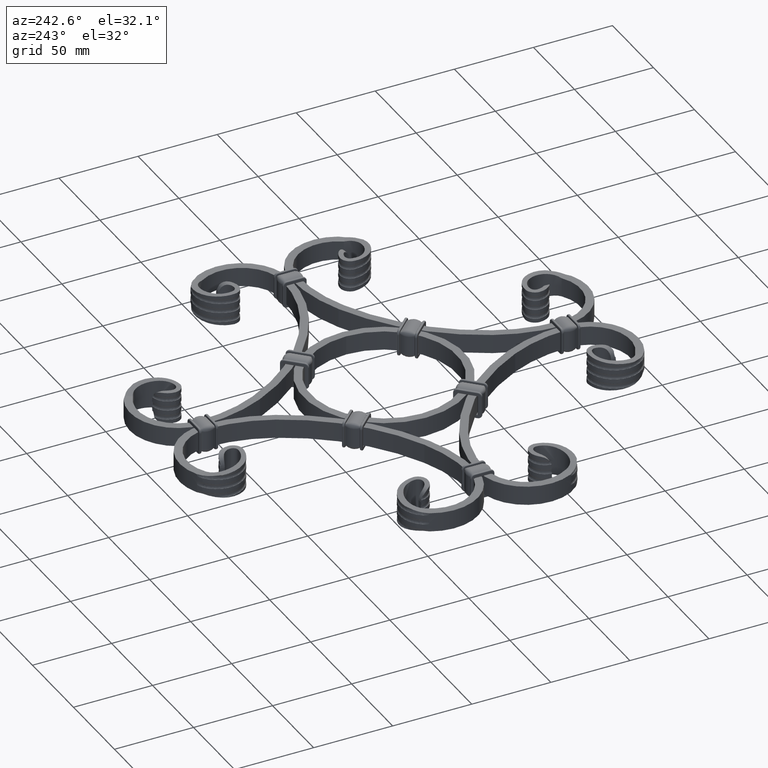
[diagram: clean part render]
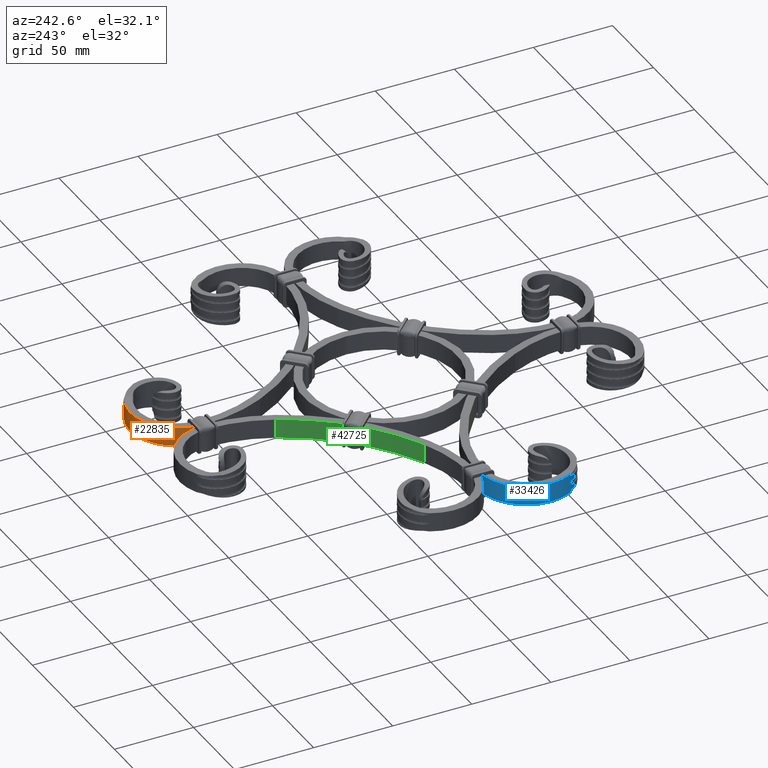
[diagram: same view with three faces highlighted in distinct colors, each labeled with its STEP entity id]
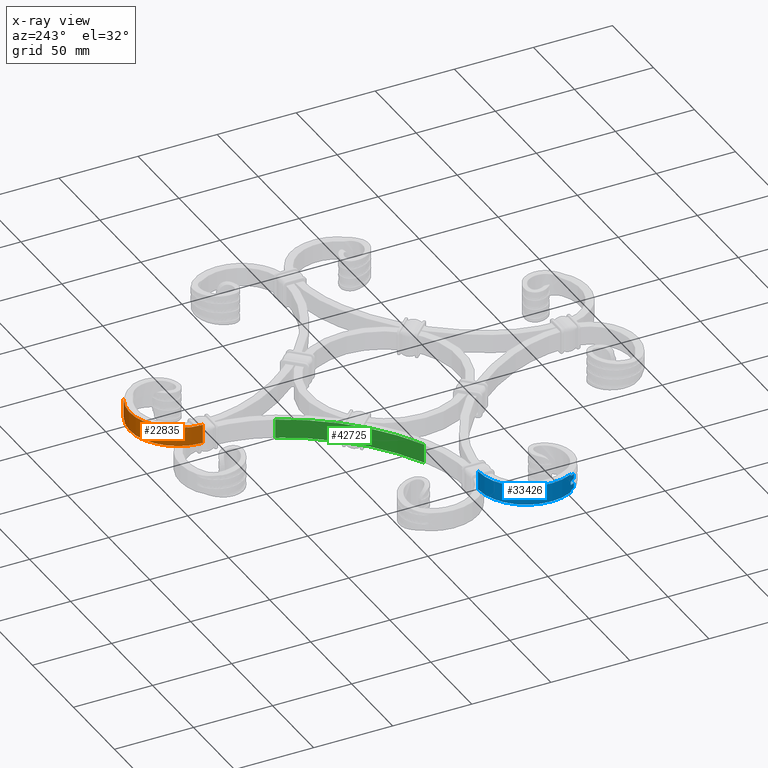
[diagram: x-ray of the same camera — body ghosted, the three highlighted faces saturated]
A machine part, auxiliary view with three faces highlighted in distinct colors.
The next image is the same camera in x-ray (body ghosted, the three faces saturated) — at least one of them is partly hidden behind the body in this view.
Their STEP definitions:

[orange] entity #22835 — the highlighted cylindrical surface (partial cylindrical patch) has radius 30.4695 mm, axis along (0, 0, 1).
#41 = VECTOR ( 'NONE', #47455, 1000.000000000000000 ) ;
#995 = VERTEX_POINT ( 'NONE', #35752 ) ;
#1142 = CARTESIAN_POINT ( 'NONE',  ( 47.08327223434769593, 140.0747903027560710, 4.497909027267798621 ) ) ;
#1564 = CARTESIAN_POINT ( 'NONE',  ( 46.46548124812328240, 140.4660913886092146, -4.514327846545052481 ) ) ;
#1619 = DIRECTION ( 'NONE',  ( 0.000000000000000000, -0.000000000000000000, 1.000000000000000000 ) ) ;
#1645 = CIRCLE ( 'NONE', #59008, 30.46951672795090715 ) ;
#1734 = CARTESIAN_POINT ( 'NONE',  ( 46.13954425604464404, 140.6642294062631606, 4.533243020575548954 ) ) ;
#1943 = VERTEX_POINT ( 'NONE', #41694 ) ;
#2212 = CARTESIAN_POINT ( 'NONE',  ( 45.20910745670473574, 141.1981766138224259, -1.176023217416813704 ) ) ;
#2465 = DIRECTION ( 'NONE',  ( 0.000000000000000000, -0.000000000000000000, 1.000000000000000000 ) ) ;
#2604 = CARTESIAN_POINT ( 'NONE',  ( 45.51109792649133823, 141.0290160251986435, -1.315637206568319284 ) ) ;
#2779 = EDGE_CURVE ( 'NONE', #40731, #995, #46443, .T. ) ;
#3202 = CARTESIAN_POINT ( 'NONE',  ( 45.22450301915570492, 141.1896556982936204, 1.184641575804486147 ) ) ;
#3408 = CARTESIAN_POINT ( 'NONE',  ( 44.52666270425268635, 141.5635759098007611, 0.1916948388191635488 ) ) ;
#3580 = ORIENTED_EDGE ( 'NONE', *, *, #56349, .F. ) ;
#3817 = CARTESIAN_POINT ( 'NONE',  ( 44.82363490789302318, 141.4074583550658133, 0.8575847813962252930 ) ) ;
#5588 = CARTESIAN_POINT ( 'NONE',  ( 44.57389824220695829, 141.5389696160094104, 5.631370710576845795 ) ) ;
#6391 = EDGE_CURVE ( 'NONE', #38807, #42667, #32446, .T. ) ;
#6392 = CARTESIAN_POINT ( 'NONE',  ( 45.67063992428941077, 140.9378696105452207, 4.635807943230747519 ) ) ;
#6393 = CARTESIAN_POINT ( 'NONE',  ( 44.52579488219581094, 141.5640271404615191, 5.999999999999999112 ) ) ;
#6493 = CARTESIAN_POINT ( 'NONE',  ( 2.775557561562891351E-14, 114.5304832720491959, -6.000000000000000000 ) ) ;
#6533 = DIRECTION ( 'NONE',  ( 0.5654410013010454650, 0.8247887451024480399, 0.000000000000000000 ) ) ;
#6597 = CARTESIAN_POINT ( 'NONE',  ( 44.52579488225183724, 141.5640271404323585, -5.999999999999999112 ) ) ;
#6914 = CARTESIAN_POINT ( 'NONE',  ( 47.69823077576244685, 139.6613977379737719, -6.000000000000000000 ) ) ;
#7444 = EDGE_CURVE ( 'NONE', #47062, #7927, #20734, .T. ) ;
#7852 = CARTESIAN_POINT ( 'NONE',  ( 44.71738763679100259, 141.4636034647674592, -0.6956814434957644400 ) ) ;
#7927 = VERTEX_POINT ( 'NONE', #32933 ) ;
#8244 = B_SPLINE_CURVE_WITH_KNOTS ( 'NONE', 3,
 ( #6597, #34548, #24861, #34152, #43469, #39031, #34345, #48140, #43663, #20014, #57620, #20410, #1564, #10665, #48338, #52810 ),
 .UNSPECIFIED., .F., .F.,
 ( 4, 2, 2, 2, 2, 2, 2, 4 ),
 ( 9.383956138473750915E-17, 0.0002776011507334015505, 0.0005552023014667093175, 0.001110404602933299590, 0.001665606904399889862, 0.002220809205866479917, 0.003331213808799619695, 0.004441618411732758606 ),
 .UNSPECIFIED. ) ;
#8280 = AXIS2_PLACEMENT_3D ( 'NONE', #24991, #2465, #6533 ) ;
#8913 = DIRECTION ( 'NONE',  ( -1.000000000000000000, 0.000000000000000000, 0.000000000000000000 ) ) ;
#9871 = CARTESIAN_POINT ( 'NONE',  ( 1.387778780781445676E-14, 114.5304832720491959, -6.000000000000000000 ) ) ;
#10246 = CARTESIAN_POINT ( 'NONE',  ( 44.53574356131753120, 141.5588604923680407, 5.811981301369261388 ) ) ;
#10471 = EDGE_CURVE ( 'NONE', #1943, #38807, #14645, .T. ) ;
#10665 = CARTESIAN_POINT ( 'NONE',  ( 47.08669489437741618, 140.0725278082961438, -4.497965187765356809 ) ) ;
#11914 = CARTESIAN_POINT ( 'NONE',  ( 46.45560204417057548, 140.4722264223008779, -1.485219069067049036 ) ) ;
#12528 = CARTESIAN_POINT ( 'NONE',  ( 46.46739171962649806, 140.4649051717034638, 1.485759726147181770 ) ) ;
#12640 = CYLINDRICAL_SURFACE ( 'NONE', #59554, 30.46951672795090715 ) ;
#12696 = EDGE_LOOP ( 'NONE', ( #3580, #35295, #55978, #49055, #47523, #40697, #16634, #30068 ) ) ;
#12720 = CARTESIAN_POINT ( 'NONE',  ( 44.67208481334076708, 141.4874894964720795, -0.6158337506737180389 ) ) ;
#14645 = CIRCLE ( 'NONE', #8280, 30.46951672795090715 ) ;
#15130 = CARTESIAN_POINT ( 'NONE',  ( 45.06918303339267595, 141.2748591894547872, 4.912771265006227850 ) ) ;
#15720 = CARTESIAN_POINT ( 'NONE',  ( 44.82303217689997155, 141.4074512609152521, 5.155863303431757139 ) ) ;
#16634 = ORIENTED_EDGE ( 'NONE', *, *, #48458, .F. ) ;
#17663 = CARTESIAN_POINT ( 'NONE',  ( 2.775557561562891351E-14, 114.5304832720491959, 6.000000000000000000 ) ) ;
#20014 = CARTESIAN_POINT ( 'NONE',  ( 45.52146626906854010, 141.0231241462956859, -4.680798780480653676 ) ) ;
#20410 = CARTESIAN_POINT ( 'NONE',  ( 46.15180784824652704, 140.6569031479930061, -4.531777490597869829 ) ) ;
#20734 = LINE ( 'NONE', #56095, #46851 ) ;
#21462 = B_SPLINE_CURVE_WITH_KNOTS ( 'NONE', 3,
 ( #58256, #25714, #58071, #11914, #30389, #48406, #2604, #2212, #48600, #25526, #26926, #7852, #12720, #54671, #59269, #45140, #54881, #3408, #26516, #31588, #3817, #49580, #3202, #40285, #22469, #35605, #12528, #31795, #54476, #54268 ),
 .UNSPECIFIED., .F., .F.,
 ( 4, 2, 2, 2, 2, 2, 2, 2, 2, 2, 2, 2, 2, 2, 4 ),
 ( 1.595417565959004637E-15, 0.001113310277416667930, 0.002226620554831740349, 0.002783275693539267667, 0.003339930832246795420, 0.003618258401600551923, 0.003896585970954308861, 0.004174913540308064497, 0.004453241109661821434, 0.005009896248369334441, 0.005566551387076849183, 0.006123206525784362191, 0.006679861664491876065, 0.007793171941906902947, 0.008906482219321930696 ),
 .UNSPECIFIED. ) ;
#22469 = CARTESIAN_POINT ( 'NONE',  ( 45.68310514919966181, 140.9306963732109068, 1.367642983503600584 ) ) ;
#22835 = ADVANCED_FACE ( 'NONE', ( #44549 ), #12640, .T. ) ;
#24062 = CARTESIAN_POINT ( 'NONE',  ( 44.72059982803918388, 141.4619044096745597, 5.299126787327071320 ) ) ;
#24861 = CARTESIAN_POINT ( 'NONE',  ( 44.53555631810328919, 141.5589577909234720, -5.813440229463910924 ) ) ;
#24991 = CARTESIAN_POINT ( 'NONE',  ( 30.46951672795093558, 114.5304832720490822, -6.000000000000000000 ) ) ;
#25526 = CARTESIAN_POINT ( 'NONE',  ( 44.87668556550659815, 141.3787612013082935, -0.9053052284229838875 ) ) ;
#25714 = CARTESIAN_POINT ( 'NONE',  ( 47.39214426400925362, 139.8712379724801167, -1.500000000000022427 ) ) ;
#26295 = CARTESIAN_POINT ( 'NONE',  ( 47.69823077576827330, 139.6613977379695939, -4.500000000000015099 ) ) ;
#26516 = CARTESIAN_POINT ( 'NONE',  ( 44.56675124775166097, 141.5428231871109972, 0.3778545635826380811 ) ) ;
#26926 = CARTESIAN_POINT ( 'NONE',  ( 44.81944147171000026, 141.4093680814833931, -0.8397688676519717843 ) ) ;
#28708 = CARTESIAN_POINT ( 'NONE',  ( 44.60186727055984335, 141.5243682472021192, 5.544714653171715746 ) ) ;
#29505 = CARTESIAN_POINT ( 'NONE',  ( 47.69823077576844383, 139.6613977379696223, 4.499999999999974243 ) ) ;
#30068 = ORIENTED_EDGE ( 'NONE', *, *, #2779, .F. ) ;
#30389 = CARTESIAN_POINT ( 'NONE',  ( 46.13683661764640220, 140.6658603228786433, -1.466532922018076945 ) ) ;
#31588 = CARTESIAN_POINT ( 'NONE',  ( 44.71571747426789756, 141.4645563596595537, 0.7114389754719041559 ) ) ;
#31795 = CARTESIAN_POINT ( 'NONE',  ( 47.08765053026861125, 140.0718981202288660, 1.502022559709539351 ) ) ;
#32446 = LINE ( 'NONE', #9871, #35289 ) ;
#32933 = CARTESIAN_POINT ( 'NONE',  ( 47.69823077576820225, 139.6613977379697360, -1.500000000000022871 ) ) ;
#33550 = CARTESIAN_POINT ( 'NONE',  ( 45.51485666305065791, 141.0268813832932437, 4.683054551434056023 ) ) ;
#34152 = CARTESIAN_POINT ( 'NONE',  ( 44.57338331349847493, 141.5392383693550471, -5.633246112923961491 ) ) ;
#34345 = CARTESIAN_POINT ( 'NONE',  ( 44.82094703526173163, 141.4088882447419451, -5.145751956315624653 ) ) ;
#34548 = CARTESIAN_POINT ( 'NONE',  ( 44.52579488224782978, 141.5640271404345754, -5.905614313492701939 ) ) ;
#35244 = CARTESIAN_POINT ( 'NONE',  ( 30.46951672795093558, 114.5304832720490822, 0.000000000000000000 ) ) ;
#35289 = VECTOR ( 'NONE', #41538, 1000.000000000000000 ) ;
#35295 = ORIENTED_EDGE ( 'NONE', *, *, #7444, .F. ) ;
#35605 = CARTESIAN_POINT ( 'NONE',  ( 46.15419083764982133, 140.6554664666762733, 1.468416354185277051 ) ) ;
#35752 = CARTESIAN_POINT ( 'NONE',  ( 47.69823077576844383, 139.6613977379696223, 4.499999999999974243 ) ) ;
#37673 = DIRECTION ( 'NONE',  ( 0.000000000000000000, 0.000000000000000000, 1.000000000000000000 ) ) ;
#38024 = CARTESIAN_POINT ( 'NONE',  ( 47.39266602009922025, 139.8708802781157203, 4.499999999999975131 ) ) ;
#38374 = EDGE_CURVE ( 'NONE', #58852, #42667, #1645, .T. ) ;
#38489 = CARTESIAN_POINT ( 'NONE',  ( 30.46951672795093558, 114.5304832720490822, 6.000000000000000000 ) ) ;
#38807 = VERTEX_POINT ( 'NONE', #6493 ) ;
#38810 = CARTESIAN_POINT ( 'NONE',  ( 45.21307426000372942, 141.1959830410633003, 4.821724277666000980 ) ) ;
#39031 = CARTESIAN_POINT ( 'NONE',  ( 44.71292965403036135, 141.4660287627348225, -5.292952970576613403 ) ) ;
#40133 = DIRECTION ( 'NONE',  ( 0.000000000000000000, 0.000000000000000000, 1.000000000000000000 ) ) ;
#40285 = CARTESIAN_POINT ( 'NONE',  ( 45.52484395640956194, 141.0212027215073647, 1.320337671982376504 ) ) ;
#40697 = ORIENTED_EDGE ( 'NONE', *, *, #38374, .F. ) ;
#40731 = VERTEX_POINT ( 'NONE', #44478 ) ;
#41538 = DIRECTION ( 'NONE',  ( 0.000000000000000000, 0.000000000000000000, 1.000000000000000000 ) ) ;
#41694 = CARTESIAN_POINT ( 'NONE',  ( 44.52579488225183724, 141.5640271404323585, -5.999999999999999112 ) ) ;
#42667 = VERTEX_POINT ( 'NONE', #17663 ) ;
#43268 = CARTESIAN_POINT ( 'NONE',  ( 46.45774979587275055, 140.4708937751842939, 4.514680431692140949 ) ) ;
#43457 = CARTESIAN_POINT ( 'NONE',  ( 44.88042542486969921, 141.3767543839871621, 5.090698496850186494 ) ) ;
#43469 = CARTESIAN_POINT ( 'NONE',  ( 44.60204080789240066, 141.5242780408834449, -5.544088273709507853 ) ) ;
#43663 = CARTESIAN_POINT ( 'NONE',  ( 45.22054243290957487, 141.1918494435678042, -4.817547062689699011 ) ) ;
#44478 = CARTESIAN_POINT ( 'NONE',  ( 47.69823077576833725, 139.6613977379697076, 1.499999999999977573 ) ) ;
#44549 = FACE_OUTER_BOUND ( 'NONE', #12696, .T. ) ;
#45140 = CARTESIAN_POINT ( 'NONE',  ( 44.53472447677575019, 141.5593904431219414, -0.1807288418918739370 ) ) ;
#46443 = LINE ( 'NONE', #6914, #41 ) ;
#46851 = VECTOR ( 'NONE', #37673, 1000.000000000000000 ) ;
#47027 = B_SPLINE_CURVE_WITH_KNOTS ( 'NONE', 3,
 ( #29505, #38024, #1142, #43268, #1734, #6392, #33550, #38810, #15130, #43457, #15720, #24062, #56428, #28708, #5588, #10246, #47537, #57795 ),
 .UNSPECIFIED., .F., .F.,
 ( 4, 2, 2, 2, 2, 2, 2, 2, 4 ),
 ( 3.668175337790957964E-15, 0.001111412524997050164, 0.002222825049990432254, 0.002778531312487123300, 0.003334237574983814779, 0.003612090706232175263, 0.003889943837480536182, 0.004167796968728897100, 0.004445650099977258018 ),
 .UNSPECIFIED. ) ;
#47062 = VERTEX_POINT ( 'NONE', #26295 ) ;
#47455 = DIRECTION ( 'NONE',  ( 0.000000000000000000, 0.000000000000000000, 1.000000000000000000 ) ) ;
#47523 = ORIENTED_EDGE ( 'NONE', *, *, #6391, .T. ) ;
#47537 = CARTESIAN_POINT ( 'NONE',  ( 44.52579488219591042, 141.5640271404613770, 5.906040363198176379 ) ) ;
#48140 = CARTESIAN_POINT ( 'NONE',  ( 45.07447936020622592, 141.2719729884449009, -4.908826634563112634 ) ) ;
#48338 = CARTESIAN_POINT ( 'NONE',  ( 47.39429654958141214, 139.8697624546380780, -4.500000000000011546 ) ) ;
#48406 = CARTESIAN_POINT ( 'NONE',  ( 45.66719007787616391, 140.9398570530363770, -1.363250527707966064 ) ) ;
#48458 = EDGE_CURVE ( 'NONE', #995, #58852, #47027, .T. ) ;
#48600 = CARTESIAN_POINT ( 'NONE',  ( 45.06508073048381391, 141.2770966888098201, -1.084261754491219643 ) ) ;
#49055 = ORIENTED_EDGE ( 'NONE', *, *, #10471, .T. ) ;
#49580 = CARTESIAN_POINT ( 'NONE',  ( 45.07892962152344296, 141.2695474524194879, 1.094483759273402468 ) ) ;
#51885 = DIRECTION ( 'NONE',  ( 0.5654410013010454650, 0.8247887451024480399, 0.000000000000000000 ) ) ;
#52810 = CARTESIAN_POINT ( 'NONE',  ( 47.69823077576827330, 139.6613977379695939, -4.500000000000015099 ) ) ;
#54268 = CARTESIAN_POINT ( 'NONE',  ( 47.69823077576833725, 139.6613977379697076, 1.499999999999977573 ) ) ;
#54476 = CARTESIAN_POINT ( 'NONE',  ( 47.39476805936760684, 139.8694392070587469, 1.499999999999977796 ) ) ;
#54671 = CARTESIAN_POINT ( 'NONE',  ( 44.59961254760192162, 141.5255479493414157, -0.4490057321157452930 ) ) ;
#54881 = CARTESIAN_POINT ( 'NONE',  ( 44.52538243321517797, 141.5642415964444183, -0.08651942410026952635 ) ) ;
#55978 = ORIENTED_EDGE ( 'NONE', *, *, #56604, .F. ) ;
#56095 = CARTESIAN_POINT ( 'NONE',  ( 47.69823077576244685, 139.6613977379737719, -6.000000000000000000 ) ) ;
#56349 = EDGE_CURVE ( 'NONE', #7927, #40731, #21462, .T. ) ;
#56428 = CARTESIAN_POINT ( 'NONE',  ( 44.67504846968261489, 141.4859284704801610, 5.378514401092022723 ) ) ;
#56604 = EDGE_CURVE ( 'NONE', #1943, #47062, #8244, .T. ) ;
#57620 = CARTESIAN_POINT ( 'NONE',  ( 45.68012101604580266, 140.9324173299189056, -4.633155438700379491 ) ) ;
#57795 = CARTESIAN_POINT ( 'NONE',  ( 44.52579488219581094, 141.5640271404615191, 5.999999999999999112 ) ) ;
#58071 = CARTESIAN_POINT ( 'NONE',  ( 47.08221566208989373, 140.0754866099770481, -1.502105339415399810 ) ) ;
#58256 = CARTESIAN_POINT ( 'NONE',  ( 47.69823077576820225, 139.6613977379697360, -1.500000000000022871 ) ) ;
#58852 = VERTEX_POINT ( 'NONE', #6393 ) ;
#59008 = AXIS2_PLACEMENT_3D ( 'NONE', #38489, #1619, #51885 ) ;
#59269 = CARTESIAN_POINT ( 'NONE',  ( 44.57202098986849848, 141.5399494908153599, -0.3620268363579919879 ) ) ;
#59554 = AXIS2_PLACEMENT_3D ( 'NONE', #35244, #40133, #8913 ) ;

[blue] entity #33426 — the highlighted cylindrical surface (partial cylindrical patch) has radius 30.4695 mm, axis along (0, 0, 1).
#86 = ORIENTED_EDGE ( 'NONE', *, *, #35659, .F. ) ;
#1131 = ORIENTED_EDGE ( 'NONE', *, *, #20103, .T. ) ;
#1254 = LINE ( 'NONE', #54974, #16476 ) ;
#1353 = CARTESIAN_POINT ( 'NONE',  ( -141.2719729884453272, -45.07447936020503221, -4.908826634563019375 ) ) ;
#1367 = CARTESIAN_POINT ( 'NONE',  ( -141.3787612013088619, -44.87668556550545418, -0.9053052284230707070 ) ) ;
#1386 = CARTESIAN_POINT ( 'NONE',  ( -141.5389696160099504, -44.57389824220567931, 5.631370710576768523 ) ) ;
#1556 = CARTESIAN_POINT ( 'NONE',  ( -140.9324173299191898, -45.68012101604468000, -4.633155438700430118 ) ) ;
#1749 = CARTESIAN_POINT ( 'NONE',  ( -141.4074583550662396, -44.82363490789187921, 0.8575847813962694799 ) ) ;
#1773 = CARTESIAN_POINT ( 'NONE',  ( -141.5640271404617465, -44.52579488219478776, 5.906040363198176379 ) ) ;
#1948 = CARTESIAN_POINT ( 'NONE',  ( -141.0212027215077057, -45.52484395640839665, 1.320337671982422689 ) ) ;
#2143 = CARTESIAN_POINT ( 'NONE',  ( -141.5642415964449583, -44.52538243321398426, -0.08651942410026755570 ) ) ;
#2181 = CARTESIAN_POINT ( 'NONE',  ( -114.5304832720491959, 9.016337449527278873E-13, -6.000000000000000000 ) ) ;
#2554 = CARTESIAN_POINT ( 'NONE',  ( -141.5640271404326995, -44.52579488225070037, -5.999999999999999112 ) ) ;
#2965 = CIRCLE ( 'NONE', #7837, 30.46951672795090005 ) ;
#3785 = DIRECTION ( 'NONE',  ( 0.000000000000000000, 0.000000000000000000, 1.000000000000000000 ) ) ;
#4249 = AXIS2_PLACEMENT_3D ( 'NONE', #37416, #32169, #4399 ) ;
#4399 = DIRECTION ( 'NONE',  ( -0.8247887451024523697, -0.5654410013010391367, 0.000000000000000000 ) ) ;
#5393 = CARTESIAN_POINT ( 'NONE',  ( -140.6658603228792117, -46.13683661764532928, -1.466532922018130236 ) ) ;
#5597 = CARTESIAN_POINT ( 'NONE',  ( -140.0725278082965417, -47.08669489437626510, -4.497965187765348816 ) ) ;
#6013 = CARTESIAN_POINT ( 'NONE',  ( -141.4660287627352204, -44.71292965402920316, -5.292952970576567218 ) ) ;
#6235 = CARTESIAN_POINT ( 'NONE',  ( -140.9378696105455333, -45.67063992428825259, 4.635807943230738637 ) ) ;
#6242 = VERTEX_POINT ( 'NONE', #18232 ) ;
#6398 = CARTESIAN_POINT ( 'NONE',  ( -141.5640271404348596, -44.52579488224670712, -5.905614313492700163 ) ) ;
#6431 = CARTESIAN_POINT ( 'NONE',  ( -141.5243682472023181, -44.60186727055872780, 5.544714653171742391 ) ) ;
#6598 = CARTESIAN_POINT ( 'NONE',  ( -141.1896556982938478, -45.22450301915453963, 1.184641575804505909 ) ) ;
#7837 = AXIS2_PLACEMENT_3D ( 'NONE', #13024, #35502, #31282 ) ;
#8919 = VERTEX_POINT ( 'NONE', #23995 ) ;
#9704 = CARTESIAN_POINT ( 'NONE',  ( -139.6613977379741129, -47.69823077576133130, -6.000000000000000000 ) ) ;
#10730 = VERTEX_POINT ( 'NONE', #31044 ) ;
#10889 = CARTESIAN_POINT ( 'NONE',  ( -141.4859284704805020, -44.67504846968152066, 5.378514401092048480 ) ) ;
#11055 = CARTESIAN_POINT ( 'NONE',  ( -141.1981766138226817, -45.20910745670359887, -1.176023217416733768 ) ) ;
#11242 = CARTESIAN_POINT ( 'NONE',  ( -141.5593904431218846, -44.53472447677490464, -0.1807288418917343265 ) ) ;
#11441 = CARTESIAN_POINT ( 'NONE',  ( -141.2770966888103601, -45.06508073048265572, -1.084261754491282037 ) ) ;
#12223 = CARTESIAN_POINT ( 'NONE',  ( -114.5304832720491959, 8.877559571449134306E-13, 6.000000000000000000 ) ) ;
#13024 = CARTESIAN_POINT ( 'NONE',  ( -114.5304832720493096, -30.46951672795001897, 6.000000000000000000 ) ) ;
#14360 = CARTESIAN_POINT ( 'NONE',  ( -139.6613977379701055, -47.69823077576708670, -1.500000000000022871 ) ) ;
#14814 = B_SPLINE_CURVE_WITH_KNOTS ( 'NONE', 3,
 ( #56860, #43114, #57067, #47972, #33792, #6235, #39053, #56668, #52256, #47579, #19833, #15956, #10889, #6431, #1386, #57454, #1773, #43494 ),
 .UNSPECIFIED., .F., .F.,
 ( 4, 2, 2, 2, 2, 2, 2, 2, 4 ),
 ( 3.668175337790957964E-15, 0.001111412524997078786, 0.002222825049990489500, 0.002778531312487174040, 0.003334237574983859014, 0.003612090706232209091, 0.003889943837480558299, 0.004167796968728908376, 0.004445650099977258018 ),
 .UNSPECIFIED. ) ;
#15956 = CARTESIAN_POINT ( 'NONE',  ( -141.4619044096747871, -44.72059982803813938, 5.299126787327153032 ) ) ;
#16312 = CARTESIAN_POINT ( 'NONE',  ( -139.6613977379699918, -47.69823077576732828, 4.499999999999974243 ) ) ;
#16367 = DIRECTION ( 'NONE',  ( 0.000000000000000000, 0.000000000000000000, 1.000000000000000000 ) ) ;
#16476 = VECTOR ( 'NONE', #40779, 1000.000000000000000 ) ;
#17327 = EDGE_CURVE ( 'NONE', #6242, #58419, #20708, .T. ) ;
#18232 = CARTESIAN_POINT ( 'NONE',  ( -114.5304832720491959, 8.877559571449134306E-13, -6.000000000000000000 ) ) ;
#19833 = CARTESIAN_POINT ( 'NONE',  ( -141.4074512609155647, -44.82303217689891284, 5.155863303431796218 ) ) ;
#20103 = EDGE_CURVE ( 'NONE', #10730, #58938, #53388, .T. ) ;
#20708 = LINE ( 'NONE', #2181, #43865 ) ;
#20792 = CARTESIAN_POINT ( 'NONE',  ( -141.5255479493419273, -44.59961254760075633, -0.4490057321157718273 ) ) ;
#23995 = CARTESIAN_POINT ( 'NONE',  ( -141.5640271404618318, -44.52579488219468118, 5.999999999999999112 ) ) ;
#24466 = CARTESIAN_POINT ( 'NONE',  ( -140.0754866099772471, -47.08221566208874975, -1.502105339415396479 ) ) ;
#24672 = CARTESIAN_POINT ( 'NONE',  ( -141.4874894964725627, -44.67208481333962311, -0.6158337506737411315 ) ) ;
#24856 = CARTESIAN_POINT ( 'NONE',  ( -139.8697624546384759, -47.39429654958030369, -4.500000000000012434 ) ) ;
#24868 = EDGE_CURVE ( 'NONE', #40588, #38685, #56578, .T. ) ;
#26645 = ORIENTED_EDGE ( 'NONE', *, *, #17327, .F. ) ;
#28190 = CYLINDRICAL_SURFACE ( 'NONE', #43687, 30.46951672795090715 ) ;
#29317 = CARTESIAN_POINT ( 'NONE',  ( -140.4660913886095273, -46.46548124812213132, -4.514327846545043599 ) ) ;
#29329 = CARTESIAN_POINT ( 'NONE',  ( -141.5428231871113951, -44.56675124775051700, 0.3778545635826514593 ) ) ;
#29457 = CIRCLE ( 'NONE', #4249, 30.46951672795090005 ) ;
#29513 = CARTESIAN_POINT ( 'NONE',  ( -139.6613977379699634, -47.69823077576715065, -4.500000000000015099 ) ) ;
#29523 = CARTESIAN_POINT ( 'NONE',  ( -140.9306963732113331, -45.68310514919857468, 1.367642983503586374 ) ) ;
#29920 = CARTESIAN_POINT ( 'NONE',  ( -139.6613977379700771, -47.69823077576722170, 1.499999999999977573 ) ) ;
#30246 = B_SPLINE_CURVE_WITH_KNOTS ( 'NONE', 3,
 ( #14360, #52030, #24466, #46958, #5393, #42117, #38635, #11055, #11441, #1367, #57040, #52424, #24672, #20792, #43470, #11242, #2143, #53010, #29329, #34153, #1749, #53202, #6598, #1948, #29523, #43664, #39213, #38430, #33768, #29920 ),
 .UNSPECIFIED., .F., .F.,
 ( 4, 2, 2, 2, 2, 2, 2, 2, 2, 2, 2, 2, 2, 2, 4 ),
 ( 1.595417565959004637E-15, 0.001113310277416626947, 0.002226620554831658383, 0.002783275693539174426, 0.003339930832246690035, 0.003618258401600447840, 0.003896585970954205211, 0.004174913540307963015, 0.004453241109661720820, 0.005009896248369237297, 0.005566551387076752906, 0.006123206525784267648, 0.006679861664491784125, 0.007793171941906856109, 0.008906482219321930696 ),
 .UNSPECIFIED. ) ;
#30840 = EDGE_LOOP ( 'NONE', ( #59246, #1131, #54422, #43596, #26645, #86, #37491, #38557 ) ) ;
#31044 = CARTESIAN_POINT ( 'NONE',  ( -139.6613977379700771, -47.69823077576722170, 1.499999999999977573 ) ) ;
#31282 = DIRECTION ( 'NONE',  ( -0.8247887451024523697, -0.5654410013010391367, 0.000000000000000000 ) ) ;
#31363 = EDGE_CURVE ( 'NONE', #59531, #10730, #30246, .T. ) ;
#31909 = CARTESIAN_POINT ( 'NONE',  ( -139.6613977379699634, -47.69823077576715065, -4.500000000000015099 ) ) ;
#32169 = DIRECTION ( 'NONE',  ( -0.000000000000000000, -0.000000000000000000, -1.000000000000000000 ) ) ;
#33209 = DIRECTION ( 'NONE',  ( 0.000000000000000000, 0.000000000000000000, 1.000000000000000000 ) ) ;
#33356 = CARTESIAN_POINT ( 'NONE',  ( -141.0231241462960838, -45.52146626906741744, -4.680798780480606602 ) ) ;
#33426 = ADVANCED_FACE ( 'NONE', ( #52151 ), #28190, .T. ) ;
#33556 = CARTESIAN_POINT ( 'NONE',  ( -141.1918494435682305, -45.22054243290843090, -4.817547062689622628 ) ) ;
#33762 = CARTESIAN_POINT ( 'NONE',  ( -140.6569031479932903, -46.15180784824539018, -4.531777490597913349 ) ) ;
#33768 = CARTESIAN_POINT ( 'NONE',  ( -139.8694392070591448, -47.39476805936647708, 1.499999999999977351 ) ) ;
#33792 = CARTESIAN_POINT ( 'NONE',  ( -140.6642294062635301, -46.13954425604349296, 4.533243020575540960 ) ) ;
#33960 = CARTESIAN_POINT ( 'NONE',  ( -141.5589577909235857, -44.53555631810230864, -5.813440229463948228 ) ) ;
#34153 = CARTESIAN_POINT ( 'NONE',  ( -141.4645563596599800, -44.71571747426676779, 0.7114389754719132597 ) ) ;
#34433 = EDGE_CURVE ( 'NONE', #38685, #59531, #1254, .T. ) ;
#35502 = DIRECTION ( 'NONE',  ( -0.000000000000000000, -0.000000000000000000, -1.000000000000000000 ) ) ;
#35659 = EDGE_CURVE ( 'NONE', #40588, #6242, #29457, .T. ) ;
#37416 = CARTESIAN_POINT ( 'NONE',  ( -114.5304832720493096, -30.46951672795001897, -6.000000000000000000 ) ) ;
#37491 = ORIENTED_EDGE ( 'NONE', *, *, #24868, .T. ) ;
#38430 = CARTESIAN_POINT ( 'NONE',  ( -140.0718981202291502, -47.08765053026747438, 1.502022559709540239 ) ) ;
#38557 = ORIENTED_EDGE ( 'NONE', *, *, #34433, .T. ) ;
#38635 = CARTESIAN_POINT ( 'NONE',  ( -141.0290160251990130, -45.51109792649018004, -1.315637206568277984 ) ) ;
#38685 = VERTEX_POINT ( 'NONE', #31909 ) ;
#39053 = CARTESIAN_POINT ( 'NONE',  ( -141.0268813832935564, -45.51485666304947841, 4.683054551434011614 ) ) ;
#39213 = CARTESIAN_POINT ( 'NONE',  ( -140.4649051717038049, -46.46739171962537540, 1.485759726147193538 ) ) ;
#39839 = EDGE_CURVE ( 'NONE', #8919, #58419, #2965, .T. ) ;
#40588 = VERTEX_POINT ( 'NONE', #2554 ) ;
#40779 = DIRECTION ( 'NONE',  ( 0.000000000000000000, 0.000000000000000000, 1.000000000000000000 ) ) ;
#42117 = CARTESIAN_POINT ( 'NONE',  ( -140.9398570530368886, -45.66719007787507678, -1.363250527708052218 ) ) ;
#43114 = CARTESIAN_POINT ( 'NONE',  ( -139.8708802781160614, -47.39266602009810470, 4.499999999999976019 ) ) ;
#43470 = CARTESIAN_POINT ( 'NONE',  ( -141.5399494908152747, -44.57202098986760319, -0.3620268363578670323 ) ) ;
#43494 = CARTESIAN_POINT ( 'NONE',  ( -141.5640271404618318, -44.52579488219468118, 5.999999999999999112 ) ) ;
#43596 = ORIENTED_EDGE ( 'NONE', *, *, #39839, .T. ) ;
#43664 = CARTESIAN_POINT ( 'NONE',  ( -140.6554664666767565, -46.15419083764872710, 1.468416354185260175 ) ) ;
#43687 = AXIS2_PLACEMENT_3D ( 'NONE', #45920, #3785, #54439 ) ;
#43865 = VECTOR ( 'NONE', #16367, 1000.000000000000000 ) ;
#43951 = VECTOR ( 'NONE', #33209, 1000.000000000000000 ) ;
#45334 = EDGE_CURVE ( 'NONE', #58938, #8919, #14814, .T. ) ;
#45920 = CARTESIAN_POINT ( 'NONE',  ( -114.5304832720493096, -30.46951672795001897, 0.000000000000000000 ) ) ;
#46958 = CARTESIAN_POINT ( 'NONE',  ( -140.4722264223011621, -46.45560204416943151, -1.485219069067038822 ) ) ;
#47579 = CARTESIAN_POINT ( 'NONE',  ( -141.3767543839877021, -44.88042542486851261, 5.090698496850083465 ) ) ;
#47937 = CARTESIAN_POINT ( 'NONE',  ( -141.5392383693551324, -44.57338331349748017, -5.633246112923996129 ) ) ;
#47972 = CARTESIAN_POINT ( 'NONE',  ( -140.4708937751846918, -46.45774979587162790, 4.514680431692124962 ) ) ;
#52030 = CARTESIAN_POINT ( 'NONE',  ( -139.8712379724804293, -47.39214426400812386, -1.500000000000022649 ) ) ;
#52151 = FACE_OUTER_BOUND ( 'NONE', #30840, .T. ) ;
#52256 = CARTESIAN_POINT ( 'NONE',  ( -141.2748591894552419, -45.06918303339147513, 4.912771265006134591 ) ) ;
#52424 = CARTESIAN_POINT ( 'NONE',  ( -141.4636034647678002, -44.71738763678983020, -0.6956814434957938609 ) ) ;
#52608 = CARTESIAN_POINT ( 'NONE',  ( -141.4088882447423146, -44.82094703526058055, -5.145751956315558040 ) ) ;
#53010 = CARTESIAN_POINT ( 'NONE',  ( -141.5635759098011874, -44.52666270425146422, 0.1916948388191654917 ) ) ;
#53202 = CARTESIAN_POINT ( 'NONE',  ( -141.2695474524198289, -45.07892962152224214, 1.094483759273473966 ) ) ;
#53274 = CARTESIAN_POINT ( 'NONE',  ( -139.6613977379701055, -47.69823077576708670, -1.500000000000022871 ) ) ;
#53388 = LINE ( 'NONE', #9704, #43951 ) ;
#54422 = ORIENTED_EDGE ( 'NONE', *, *, #45334, .T. ) ;
#54439 = DIRECTION ( 'NONE',  ( 7.742899069889897721E-15, 1.000000000000000000, 0.000000000000000000 ) ) ;
#54974 = CARTESIAN_POINT ( 'NONE',  ( -139.6613977379741129, -47.69823077576133130, -6.000000000000000000 ) ) ;
#56578 = B_SPLINE_CURVE_WITH_KNOTS ( 'NONE', 3,
 ( #57029, #6398, #33960, #47937, #56826, #6013, #52608, #1353, #33556, #33356, #1556, #33762, #29317, #5597, #24856, #29513 ),
 .UNSPECIFIED., .F., .F.,
 ( 4, 2, 2, 2, 2, 2, 2, 4 ),
 ( 9.383956138473750915E-17, 0.0002776011507333986232, 0.0005552023014667034628, 0.001110404602933287880, 0.001665606904399872298, 0.002220809205866456498, 0.003331213808799607552, 0.004441618411732758606 ),
 .UNSPECIFIED. ) ;
#56668 = CARTESIAN_POINT ( 'NONE',  ( -141.1959830410636130, -45.21307426000259966, 4.821724277665998315 ) ) ;
#56826 = CARTESIAN_POINT ( 'NONE',  ( -141.5242780408838428, -44.60204080789122116, -5.544088273709466996 ) ) ;
#56860 = CARTESIAN_POINT ( 'NONE',  ( -139.6613977379699918, -47.69823077576732828, 4.499999999999974243 ) ) ;
#57029 = CARTESIAN_POINT ( 'NONE',  ( -141.5640271404326995, -44.52579488225070037, -5.999999999999999112 ) ) ;
#57040 = CARTESIAN_POINT ( 'NONE',  ( -141.4093680814837910, -44.81944147170885628, -0.8397688676519913242 ) ) ;
#57067 = CARTESIAN_POINT ( 'NONE',  ( -140.0747903027564121, -47.08327223434657327, 4.497909027267788851 ) ) ;
#57454 = CARTESIAN_POINT ( 'NONE',  ( -141.5588604923685239, -44.53574356131618828, 5.811981301369168129 ) ) ;
#58419 = VERTEX_POINT ( 'NONE', #12223 ) ;
#58938 = VERTEX_POINT ( 'NONE', #16312 ) ;
#59246 = ORIENTED_EDGE ( 'NONE', *, *, #31363, .T. ) ;
#59531 = VERTEX_POINT ( 'NONE', #53274 ) ;

[green] entity #42725 — the highlighted cylindrical surface (partial cylindrical patch) has radius 133.179 mm, axis along (0, 0, 1).
#228 = DIRECTION ( 'NONE',  ( 0.000000000000000000, 0.000000000000000000, 1.000000000000000000 ) ) ;
#2964 = EDGE_CURVE ( 'NONE', #14178, #34630, #19628, .T. ) ;
#3010 = VERTEX_POINT ( 'NONE', #23155 ) ;
#8215 = AXIS2_PLACEMENT_3D ( 'NONE', #31541, #17759, #22837 ) ;
#9327 = VERTEX_POINT ( 'NONE', #36677 ) ;
#10396 = CARTESIAN_POINT ( 'NONE',  ( -13.88247173995935135, 75.77249486318585525, -6.000000000000000000 ) ) ;
#11520 = ORIENTED_EDGE ( 'NONE', *, *, #52492, .T. ) ;
#12150 = CARTESIAN_POINT ( 'NONE',  ( -75.77249486318596894, 13.88247173995874562, -6.000000000000000000 ) ) ;
#12358 = LINE ( 'NONE', #10396, #50030 ) ;
#14178 = VERTEX_POINT ( 'NONE', #24685 ) ;
#14242 = ORIENTED_EDGE ( 'NONE', *, *, #2964, .F. ) ;
#17759 = DIRECTION ( 'NONE',  ( -0.000000000000000000, -0.000000000000000000, -1.000000000000000000 ) ) ;
#18480 = DIRECTION ( 'NONE',  ( -0.000000000000000000, -0.000000000000000000, -1.000000000000000000 ) ) ;
#19533 = FACE_OUTER_BOUND ( 'NONE', #56642, .T. ) ;
#19628 = CIRCLE ( 'NONE', #31897, 133.1787558030673040 ) ;
#20029 = ORIENTED_EDGE ( 'NONE', *, *, #44858, .F. ) ;
#22837 = DIRECTION ( 'NONE',  ( 0.9001969467420302129, -0.4354830158299246579, 0.000000000000000000 ) ) ;
#23155 = CARTESIAN_POINT ( 'NONE',  ( -75.77249486318596894, 13.88247173995874562, -6.000000000000000000 ) ) ;
#23350 = CARTESIAN_POINT ( 'NONE',  ( -133.7695810847829989, 133.7695810847827147, 0.000000000000000000 ) ) ;
#24685 = CARTESIAN_POINT ( 'NONE',  ( -13.88247173995935135, 75.77249486318585525, 6.000000000000000000 ) ) ;
#26272 = EDGE_CURVE ( 'NONE', #14178, #9327, #12358, .T. ) ;
#28614 = CARTESIAN_POINT ( 'NONE',  ( -75.77249486318596894, 13.88247173995874562, 6.000000000000000000 ) ) ;
#28948 = CYLINDRICAL_SURFACE ( 'NONE', #31153, 133.1787558030673040 ) ;
#30413 = ORIENTED_EDGE ( 'NONE', *, *, #26272, .T. ) ;
#31153 = AXIS2_PLACEMENT_3D ( 'NONE', #23350, #228, #59940 ) ;
#31541 = CARTESIAN_POINT ( 'NONE',  ( -133.7695810847829989, 133.7695810847827147, -6.000000000000000000 ) ) ;
#31687 = VECTOR ( 'NONE', #53891, 1000.000000000000000 ) ;
#31897 = AXIS2_PLACEMENT_3D ( 'NONE', #46219, #18480, #32248 ) ;
#32248 = DIRECTION ( 'NONE',  ( 0.9001969467420302129, -0.4354830158299246579, 0.000000000000000000 ) ) ;
#34630 = VERTEX_POINT ( 'NONE', #28614 ) ;
#36677 = CARTESIAN_POINT ( 'NONE',  ( -13.88247173995935135, 75.77249486318585525, -6.000000000000000000 ) ) ;
#38191 = LINE ( 'NONE', #12150, #31687 ) ;
#42725 = ADVANCED_FACE ( 'NONE', ( #19533 ), #28948, .F. ) ;
#44858 = EDGE_CURVE ( 'NONE', #34630, #3010, #38191, .T. ) ;
#46219 = CARTESIAN_POINT ( 'NONE',  ( -133.7695810847829989, 133.7695810847827147, 6.000000000000000000 ) ) ;
#47875 = DIRECTION ( 'NONE',  ( 0.000000000000000000, -0.000000000000000000, -1.000000000000000000 ) ) ;
#50030 = VECTOR ( 'NONE', #47875, 1000.000000000000000 ) ;
#52492 = EDGE_CURVE ( 'NONE', #9327, #3010, #56713, .T. ) ;
#53891 = DIRECTION ( 'NONE',  ( 0.000000000000000000, 0.000000000000000000, -1.000000000000000000 ) ) ;
#56642 = EDGE_LOOP ( 'NONE', ( #11520, #20029, #14242, #30413 ) ) ;
#56713 = CIRCLE ( 'NONE', #8215, 133.1787558030673040 ) ;
#59940 = DIRECTION ( 'NONE',  ( 1.000000000000000000, 0.000000000000000000, 0.000000000000000000 ) ) ;